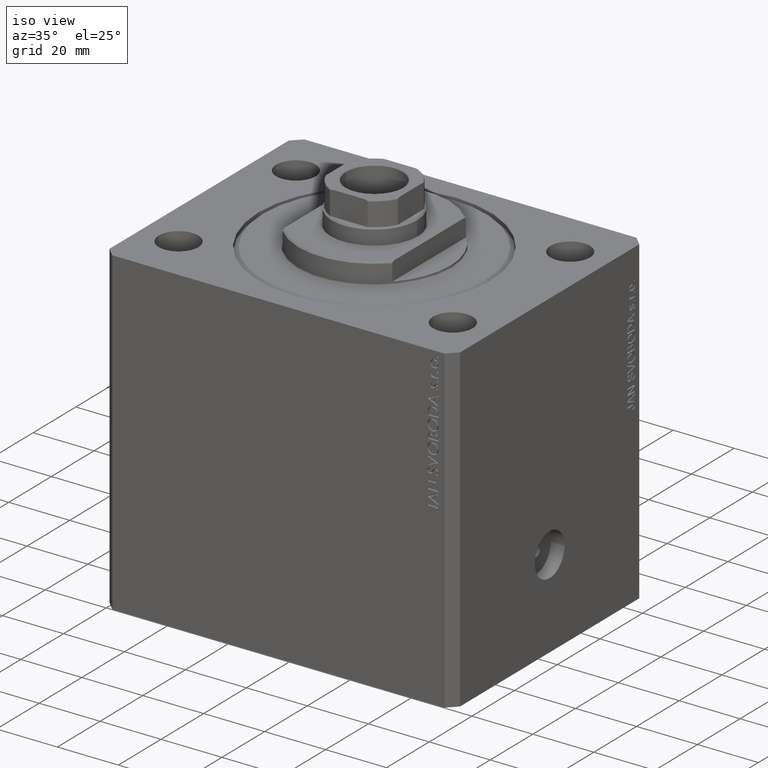
[diagram: clean part render]
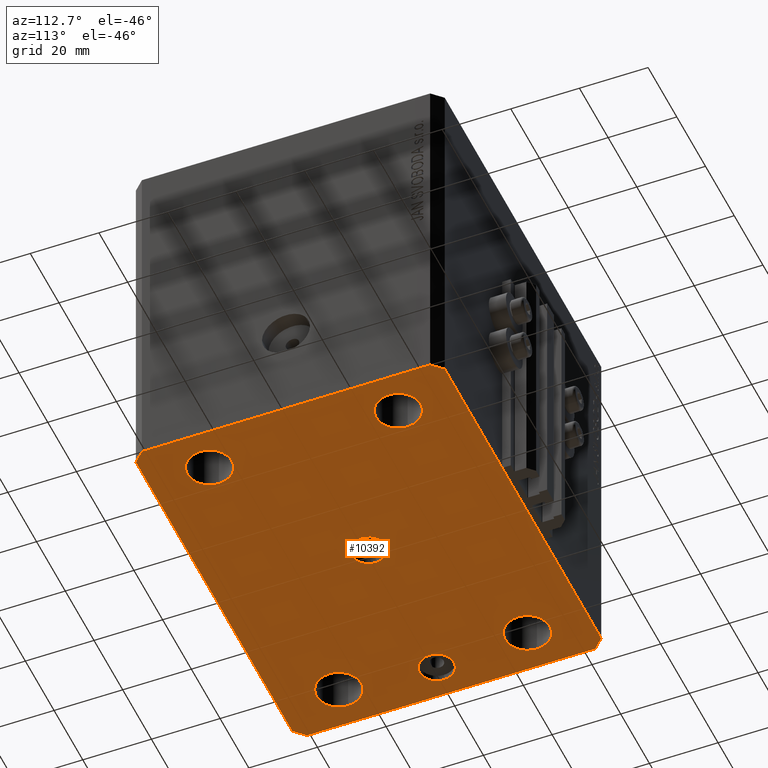
[diagram: tour spotlight — one face highlighted and labeled with its STEP entity id]
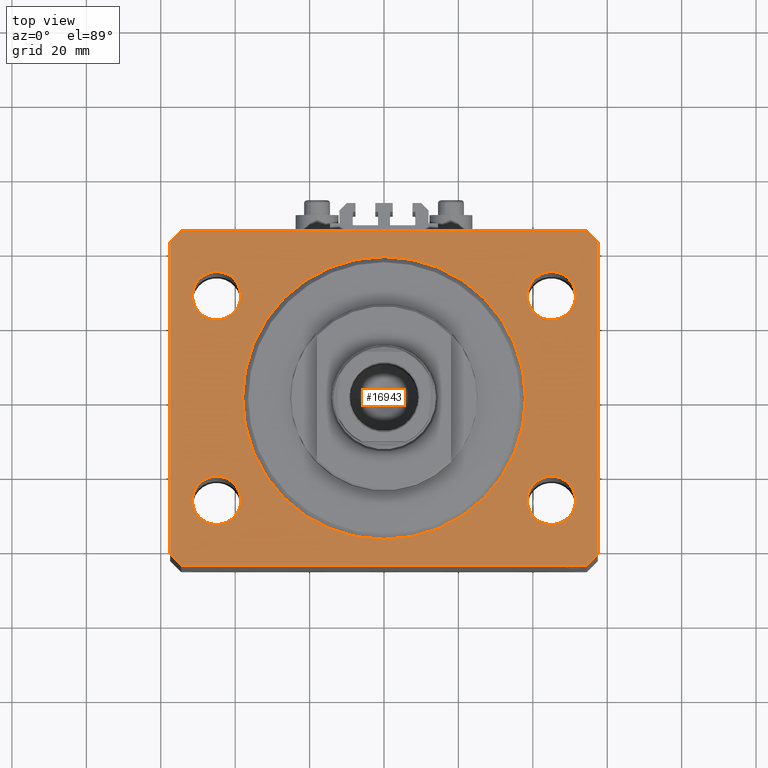
[diagram: tour spotlight — one face highlighted and labeled with its STEP entity id]
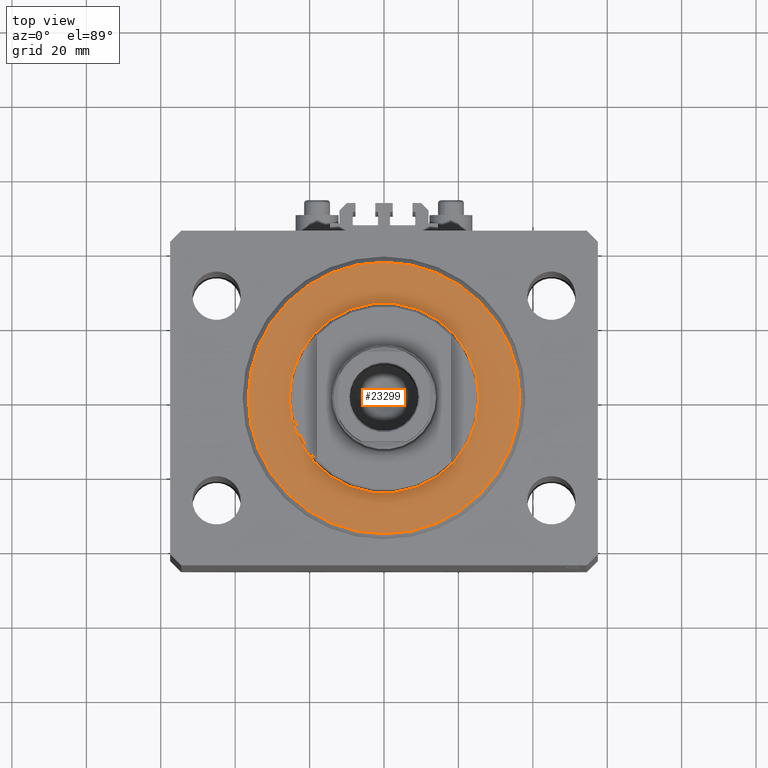
[diagram: tour spotlight — one face highlighted and labeled with its STEP entity id]
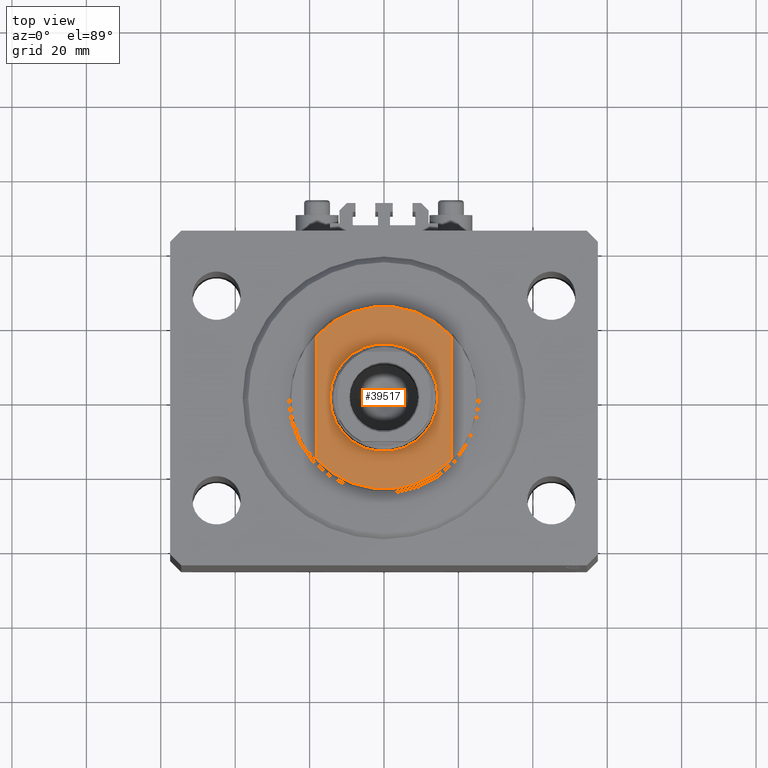
[diagram: tour spotlight — one face highlighted and labeled with its STEP entity id]
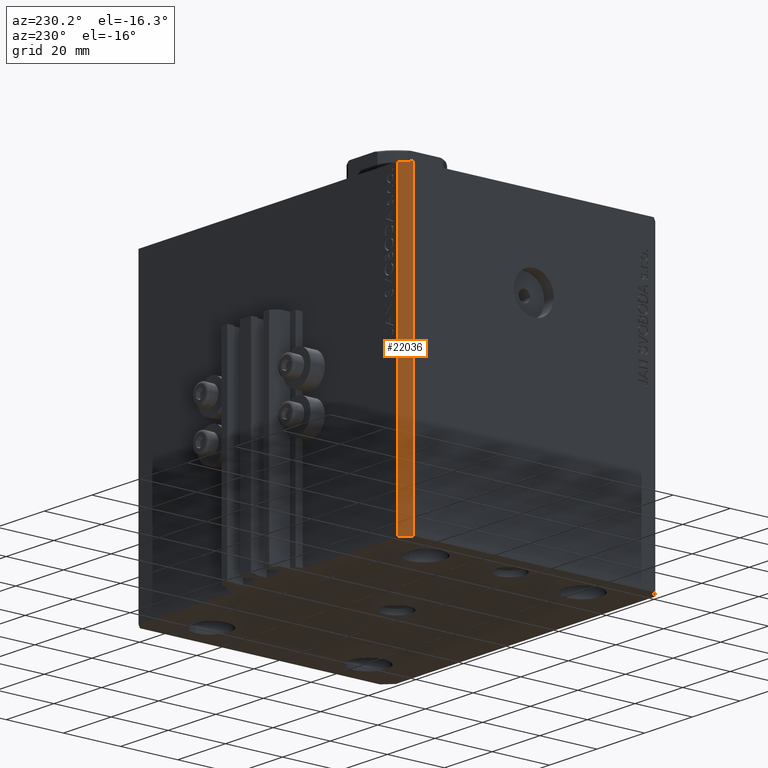
[diagram: tour spotlight — one face highlighted and labeled with its STEP entity id]
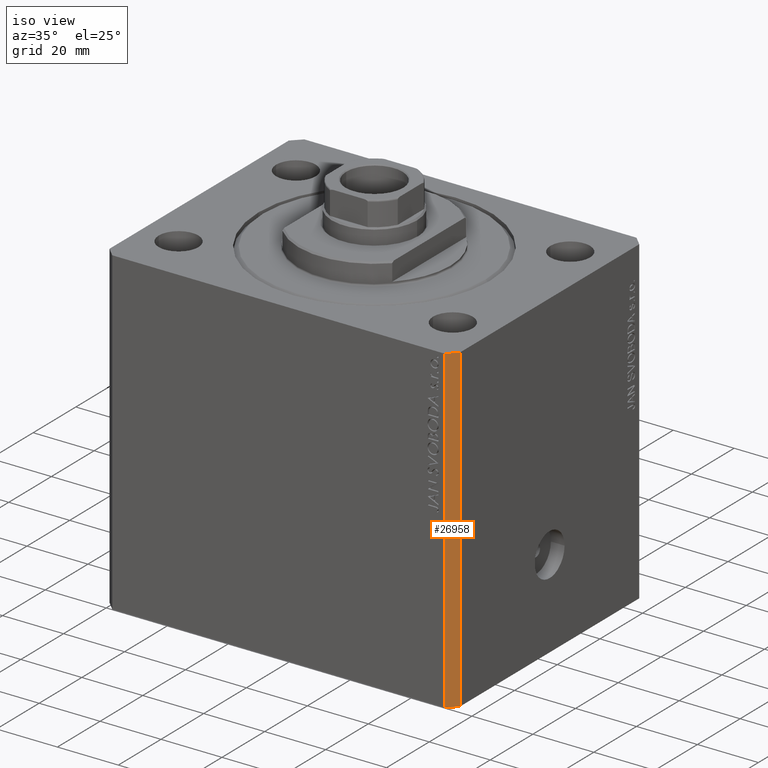
[diagram: tour spotlight — one face highlighted and labeled with its STEP entity id]
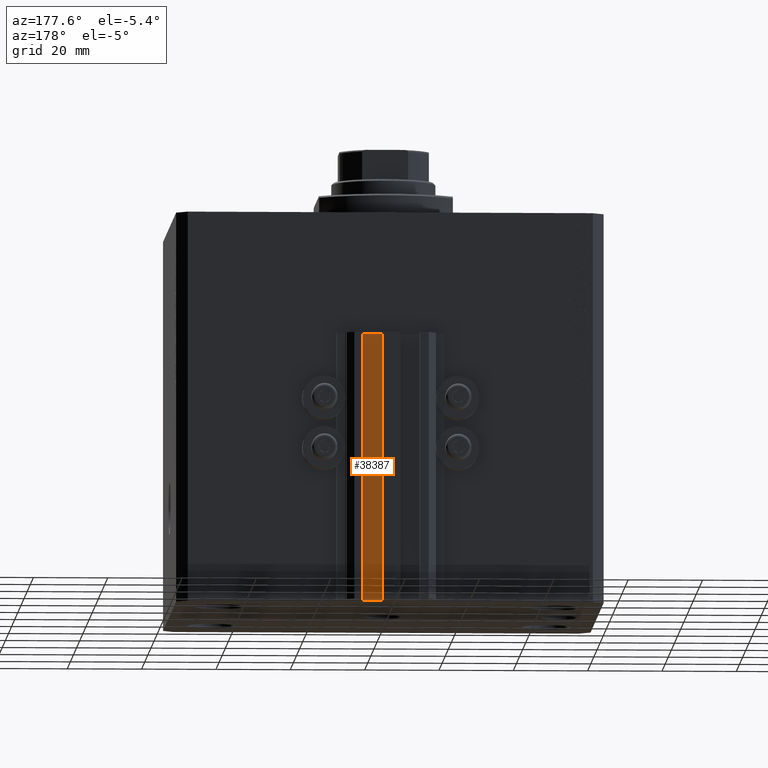
[diagram: tour spotlight — one face highlighted and labeled with its STEP entity id]
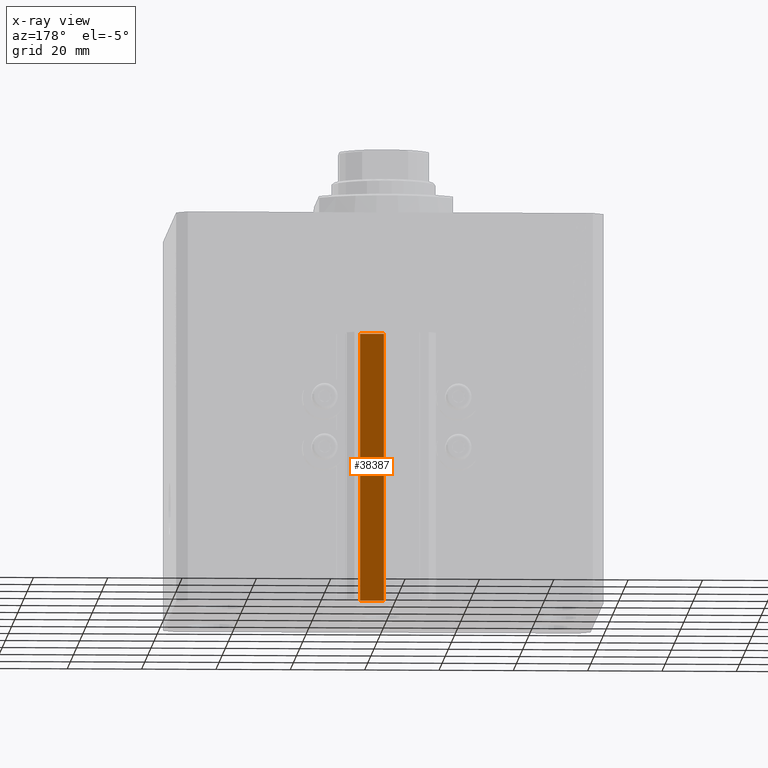
[diagram: x-ray of the same camera — body ghosted, this tour face saturated]
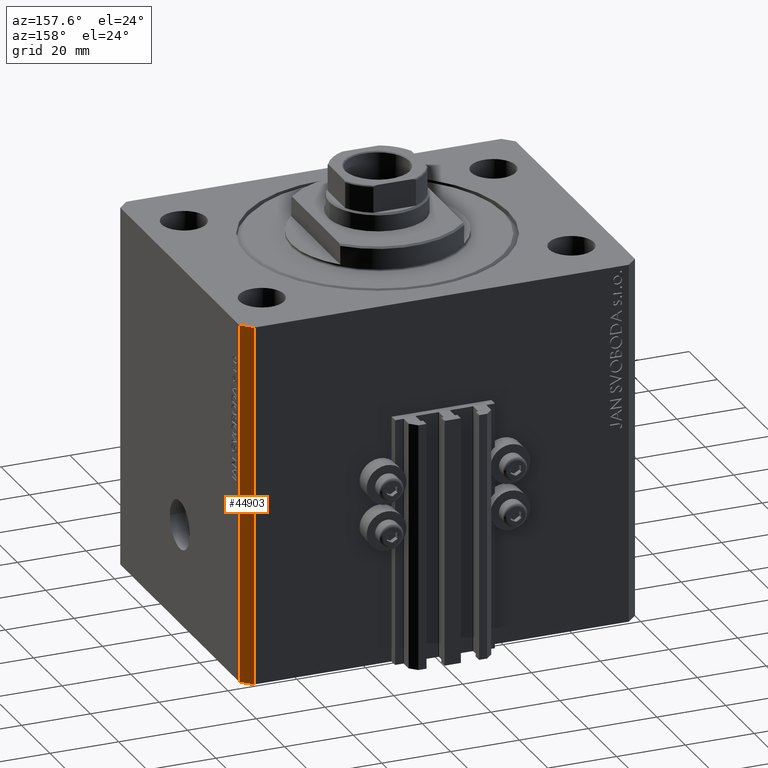
[diagram: tour spotlight — one face highlighted and labeled with its STEP entity id]
A machine part: a face-by-face anatomy tour. The part has 1038 B-rep faces; the first image is the clean iso view, then the 8 largest visible faces are spotlighted one at a time (largest first), each with its STEP entity span.

Face 1 — auxiliary view, entity #10392. In plain terms, the highlighted planar face has unit normal (0, 0, 1).
Definition (entity closure, byte-faithful):
#69 = LINE ( 'NONE', #21145, #22393 ) ;
#140 = CARTESIAN_POINT ( 'NONE',  ( -51.49999999999998579, -27.50000000000000355, -105.0000000000000000 ) ) ;
#258 = LINE ( 'NONE', #14835, #35272 ) ;
#326 = EDGE_CURVE ( 'NONE', #15201, #37220, #16287, .T. ) ;
#493 = DIRECTION ( 'NONE',  ( 0.7071067811865483499, 0.7071067811865466846, 0.000000000000000000 ) ) ;
#679 = CARTESIAN_POINT ( 'NONE',  ( 44.99999999999998579, -27.50000000000000355, -105.0000000000000000 ) ) ;
#759 = ORIENTED_EDGE ( 'NONE', *, *, #2575, .F. ) ;
#1664 = CARTESIAN_POINT ( 'NONE',  ( -54.49999999999999289, 45.00000000000000000, -105.0000000000000000 ) ) ;
#1755 = EDGE_CURVE ( 'NONE', #46718, #26068, #69, .T. ) ;
#2011 = AXIS2_PLACEMENT_3D ( 'NONE', #16313, #30922, #27315 ) ;
#2045 = CIRCLE ( 'NONE', #2011, 6.499999999999999112 ) ;
#2467 = AXIS2_PLACEMENT_3D ( 'NONE', #679, #22916, #44963 ) ;
#2575 = EDGE_CURVE ( 'NONE', #29087, #30211, #10949, .T. ) ;
#2623 = ORIENTED_EDGE ( 'NONE', *, *, #16200, .F. ) ;
#2705 = ORIENTED_EDGE ( 'NONE', *, *, #12320, .F. ) ;
#2850 = CARTESIAN_POINT ( 'NONE',  ( 54.50000000000000711, -44.99999999999998579, -105.0000000000000000 ) ) ;
#3313 = VECTOR ( 'NONE', #20920, 1000.000000000000000 ) ;
#3509 = DIRECTION ( 'NONE',  ( 0.000000000000000000, 0.000000000000000000, -1.000000000000000000 ) ) ;
#4062 = VERTEX_POINT ( 'NONE', #34671 ) ;
#4365 = VERTEX_POINT ( 'NONE', #9695 ) ;
#4397 = VERTEX_POINT ( 'NONE', #35559 ) ;
#4896 = EDGE_LOOP ( 'NONE', ( #15255, #2705 ) ) ;
#6023 = FACE_OUTER_BOUND ( 'NONE', #44539, .T. ) ;
#6194 = ORIENTED_EDGE ( 'NONE', *, *, #15883, .F. ) ;
#6317 = CARTESIAN_POINT ( 'NONE',  ( -57.49999999999998579, 42.00000000000000711, -105.0000000000000000 ) ) ;
#7408 = CARTESIAN_POINT ( 'NONE',  ( -47.50000000000000000, 0.000000000000000000, -105.0000000000000000 ) ) ;
#7666 = CIRCLE ( 'NONE', #13800, 6.499999999999999112 ) ;
#9592 = EDGE_CURVE ( 'NONE', #31810, #4062, #258, .T. ) ;
#9615 = FACE_BOUND ( 'NONE', #32064, .T. ) ;
#9630 = CARTESIAN_POINT ( 'NONE',  ( 44.99999999999998579, -27.50000000000000355, -105.0000000000000000 ) ) ;
#9643 = CARTESIAN_POINT ( 'NONE',  ( 0.000000000000000000, 0.000000000000000000, -105.0000000000000000 ) ) ;
#9695 = CARTESIAN_POINT ( 'NONE',  ( -57.50000000000000711, -42.00000000000000711, -105.0000000000000000 ) ) ;
#9883 = VERTEX_POINT ( 'NONE', #11187 ) ;
#9913 = EDGE_CURVE ( 'NONE', #43850, #46718, #15495, .T. ) ;
#10392 = ADVANCED_FACE ( 'NONE', ( #31649, #46263, #9615, #24438, #17746, #38832, #6023 ), #39070, .F. ) ;
#10811 = AXIS2_PLACEMENT_3D ( 'NONE', #9643, #31203, #45350 ) ;
#10949 = CIRCLE ( 'NONE', #19366, 6.499999999999999112 ) ;
#11187 = CARTESIAN_POINT ( 'NONE',  ( 51.49999999999998579, -27.50000000000000355, -105.0000000000000000 ) ) ;
#11669 = EDGE_CURVE ( 'NONE', #9883, #12645, #46834, .T. ) ;
#11958 = DIRECTION ( 'NONE',  ( -0.000000000000000000, -0.000000000000000000, -1.000000000000000000 ) ) ;
#12202 = CARTESIAN_POINT ( 'NONE',  ( -51.50000000000000000, 27.49999999999999645, -105.0000000000000000 ) ) ;
#12320 = EDGE_CURVE ( 'NONE', #12645, #9883, #12379, .T. ) ;
#12379 = CIRCLE ( 'NONE', #18506, 6.499999999999999112 ) ;
#12645 = VERTEX_POINT ( 'NONE', #45744 ) ;
#12703 = VERTEX_POINT ( 'NONE', #12202 ) ;
#12864 = DIRECTION ( 'NONE',  ( 0.000000000000000000, 0.000000000000000000, -1.000000000000000000 ) ) ;
#13404 = EDGE_LOOP ( 'NONE', ( #24295, #46302 ) ) ;
#13576 = DIRECTION ( 'NONE',  ( -0.000000000000000000, -0.000000000000000000, -1.000000000000000000 ) ) ;
#13800 = AXIS2_PLACEMENT_3D ( 'NONE', #24795, #29097, #46371 ) ;
#14080 = ORIENTED_EDGE ( 'NONE', *, *, #30751, .F. ) ;
#14551 = DIRECTION ( 'NONE',  ( -0.000000000000000000, -0.000000000000000000, -1.000000000000000000 ) ) ;
#14561 = EDGE_CURVE ( 'NONE', #15284, #42773, #19215, .T. ) ;
#14607 = EDGE_CURVE ( 'NONE', #18585, #12703, #36088, .T. ) ;
#14835 = CARTESIAN_POINT ( 'NONE',  ( 54.50000000000000711, -44.99999999999998579, -105.0000000000000000 ) ) ;
#15035 = CARTESIAN_POINT ( 'NONE',  ( -54.49999999999999289, 45.00000000000000000, -105.0000000000000000 ) ) ;
#15201 = VERTEX_POINT ( 'NONE', #21013 ) ;
#15255 = ORIENTED_EDGE ( 'NONE', *, *, #11669, .F. ) ;
#15284 = VERTEX_POINT ( 'NONE', #43759 ) ;
#15293 = EDGE_LOOP ( 'NONE', ( #36101, #24838 ) ) ;
#15484 = LINE ( 'NONE', #36562, #27704 ) ;
#15495 = LINE ( 'NONE', #41128, #42141 ) ;
#15883 = EDGE_CURVE ( 'NONE', #37220, #15201, #20834, .T. ) ;
#16071 = CARTESIAN_POINT ( 'NONE',  ( -54.50000000000000711, -45.00000000000000000, -105.0000000000000000 ) ) ;
#16119 = DIRECTION ( 'NONE',  ( -0.000000000000000000, -0.000000000000000000, -1.000000000000000000 ) ) ;
#16200 = EDGE_CURVE ( 'NONE', #4365, #4397, #15484, .T. ) ;
#16257 = AXIS2_PLACEMENT_3D ( 'NONE', #7408, #32344, #47182 ) ;
#16287 = CIRCLE ( 'NONE', #39988, 4.999999999999997335 ) ;
#16313 = CARTESIAN_POINT ( 'NONE',  ( -44.99999999999998579, -27.50000000000000355, -105.0000000000000000 ) ) ;
#16476 = CARTESIAN_POINT ( 'NONE',  ( 38.50000000000000000, 27.49999999999999289, -105.0000000000000000 ) ) ;
#16489 = ORIENTED_EDGE ( 'NONE', *, *, #9913, .F. ) ;
#16772 = EDGE_LOOP ( 'NONE', ( #6194, #45120 ) ) ;
#16852 = CARTESIAN_POINT ( 'NONE',  ( -38.50000000000000000, 27.49999999999999645, -105.0000000000000000 ) ) ;
#17696 = AXIS2_PLACEMENT_3D ( 'NONE', #46728, #21332, #20627 ) ;
#17746 = FACE_BOUND ( 'NONE', #25788, .T. ) ;
#18251 = VERTEX_POINT ( 'NONE', #34165 ) ;
#18361 = DIRECTION ( 'NONE',  ( 0.7071067811865491270, -0.7071067811865459074, 0.000000000000000000 ) ) ;
#18384 = DIRECTION ( 'NONE',  ( 1.000000000000000000, 0.000000000000000000, 0.000000000000000000 ) ) ;
#18506 = AXIS2_PLACEMENT_3D ( 'NONE', #9630, #41736, #38618 ) ;
#18585 = VERTEX_POINT ( 'NONE', #16852 ) ;
#18617 = ORIENTED_EDGE ( 'NONE', *, *, #24528, .F. ) ;
#18626 = EDGE_CURVE ( 'NONE', #37508, #4365, #30766, .T. ) ;
#19215 = CIRCLE ( 'NONE', #10811, 5.000000000000000000 ) ;
#19366 = AXIS2_PLACEMENT_3D ( 'NONE', #29945, #11958, #36638 ) ;
#19524 = CIRCLE ( 'NONE', #35610, 5.000000000000000000 ) ;
#19955 = CARTESIAN_POINT ( 'NONE',  ( -45.00000000000000000, 27.49999999999999645, -105.0000000000000000 ) ) ;
#20561 = LINE ( 'NONE', #31342, #45519 ) ;
#20627 = DIRECTION ( 'NONE',  ( 1.000000000000000000, 0.000000000000000000, -0.000000000000000000 ) ) ;
#20834 = CIRCLE ( 'NONE', #16257, 4.999999999999997335 ) ;
#20920 = DIRECTION ( 'NONE',  ( -2.478176394252581141E-16, -1.000000000000000000, 0.000000000000000000 ) ) ;
#20947 = VERTEX_POINT ( 'NONE', #16476 ) ;
#21013 = CARTESIAN_POINT ( 'NONE',  ( -42.50000000000000000, 6.123233995736762338E-16, -105.0000000000000000 ) ) ;
#21145 = CARTESIAN_POINT ( 'NONE',  ( 54.50000000000059686, 45.00000000000002842, -105.0000000000000000 ) ) ;
#21332 = DIRECTION ( 'NONE',  ( 0.000000000000000000, 0.000000000000000000, 1.000000000000000000 ) ) ;
#22070 = DIRECTION ( 'NONE',  ( -1.000000000000000000, -2.546383084002638829E-16, 0.000000000000000000 ) ) ;
#22393 = VECTOR ( 'NONE', #22070, 1000.000000000000000 ) ;
#22453 = DIRECTION ( 'NONE',  ( -0.7071067811865483499, -0.7071067811865466846, 0.000000000000000000 ) ) ;
#22916 = DIRECTION ( 'NONE',  ( -0.000000000000000000, -0.000000000000000000, -1.000000000000000000 ) ) ;
#23088 = CARTESIAN_POINT ( 'NONE',  ( -5.000000000000000000, 0.000000000000000000, -105.0000000000000000 ) ) ;
#23637 = CARTESIAN_POINT ( 'NONE',  ( 45.00000000000000000, 27.49999999999999289, -105.0000000000000000 ) ) ;
#24295 = ORIENTED_EDGE ( 'NONE', *, *, #24766, .F. ) ;
#24438 = FACE_BOUND ( 'NONE', #4896, .T. ) ;
#24528 = EDGE_CURVE ( 'NONE', #26068, #37508, #47377, .T. ) ;
#24632 = CIRCLE ( 'NONE', #28484, 6.499999999999999112 ) ;
#24766 = EDGE_CURVE ( 'NONE', #42773, #15284, #19524, .T. ) ;
#24795 = CARTESIAN_POINT ( 'NONE',  ( -45.00000000000000000, 27.49999999999999645, -105.0000000000000000 ) ) ;
#24838 = ORIENTED_EDGE ( 'NONE', *, *, #41880, .F. ) ;
#24990 = ORIENTED_EDGE ( 'NONE', *, *, #34250, .F. ) ;
#25788 = EDGE_LOOP ( 'NONE', ( #24990, #37772 ) ) ;
#25978 = CARTESIAN_POINT ( 'NONE',  ( 0.000000000000000000, 0.000000000000000000, -105.0000000000000000 ) ) ;
#26068 = VERTEX_POINT ( 'NONE', #1664 ) ;
#27156 = EDGE_CURVE ( 'NONE', #4062, #43850, #20561, .T. ) ;
#27315 = DIRECTION ( 'NONE',  ( 1.000000000000000000, 0.000000000000000000, 0.000000000000000000 ) ) ;
#27704 = VECTOR ( 'NONE', #18361, 1000.000000000000114 ) ;
#28484 = AXIS2_PLACEMENT_3D ( 'NONE', #40197, #14551, #18384 ) ;
#29051 = CARTESIAN_POINT ( 'NONE',  ( -38.49999999999998579, -27.50000000000000355, -105.0000000000000000 ) ) ;
#29087 = VERTEX_POINT ( 'NONE', #140 ) ;
#29097 = DIRECTION ( 'NONE',  ( -0.000000000000000000, -0.000000000000000000, -1.000000000000000000 ) ) ;
#29945 = CARTESIAN_POINT ( 'NONE',  ( -44.99999999999998579, -27.50000000000000355, -105.0000000000000000 ) ) ;
#30186 = ORIENTED_EDGE ( 'NONE', *, *, #1755, .F. ) ;
#30211 = VERTEX_POINT ( 'NONE', #29051 ) ;
#30629 = ORIENTED_EDGE ( 'NONE', *, *, #45435, .F. ) ;
#30656 = CARTESIAN_POINT ( 'NONE',  ( 54.50000000000059686, 45.00000000000002842, -105.0000000000000000 ) ) ;
#30751 = EDGE_CURVE ( 'NONE', #30211, #29087, #2045, .T. ) ;
#30766 = LINE ( 'NONE', #6317, #3313 ) ;
#30913 = ORIENTED_EDGE ( 'NONE', *, *, #27156, .F. ) ;
#30922 = DIRECTION ( 'NONE',  ( -0.000000000000000000, -0.000000000000000000, -1.000000000000000000 ) ) ;
#30968 = DIRECTION ( 'NONE',  ( 1.000000000000000000, 0.000000000000000000, 0.000000000000000000 ) ) ;
#31203 = DIRECTION ( 'NONE',  ( 0.000000000000000000, 0.000000000000000000, -1.000000000000000000 ) ) ;
#31336 = ORIENTED_EDGE ( 'NONE', *, *, #9592, .F. ) ;
#31342 = CARTESIAN_POINT ( 'NONE',  ( 57.50000000000000711, -41.99999999999998579, -105.0000000000000000 ) ) ;
#31649 = FACE_BOUND ( 'NONE', #13404, .T. ) ;
#31810 = VERTEX_POINT ( 'NONE', #2850 ) ;
#31898 = AXIS2_PLACEMENT_3D ( 'NONE', #23637, #13576, #34682 ) ;
#32064 = EDGE_LOOP ( 'NONE', ( #14080, #759 ) ) ;
#32344 = DIRECTION ( 'NONE',  ( 0.000000000000000000, 0.000000000000000000, -1.000000000000000000 ) ) ;
#32568 = CARTESIAN_POINT ( 'NONE',  ( -57.49999999999998579, 42.00000000000000711, -105.0000000000000000 ) ) ;
#34165 = CARTESIAN_POINT ( 'NONE',  ( 51.50000000000000000, 27.49999999999999289, -105.0000000000000000 ) ) ;
#34250 = EDGE_CURVE ( 'NONE', #18251, #20947, #36464, .T. ) ;
#34565 = VECTOR ( 'NONE', #41703, 1000.000000000000000 ) ;
#34671 = CARTESIAN_POINT ( 'NONE',  ( 57.50000000000000711, -41.99999999999998579, -105.0000000000000000 ) ) ;
#34682 = DIRECTION ( 'NONE',  ( 1.000000000000000000, 0.000000000000000000, 0.000000000000000000 ) ) ;
#35175 = DIRECTION ( 'NONE',  ( 6.443258625056715108E-15, 1.000000000000000000, 0.000000000000000000 ) ) ;
#35272 = VECTOR ( 'NONE', #493, 1000.000000000000000 ) ;
#35325 = ORIENTED_EDGE ( 'NONE', *, *, #18626, .F. ) ;
#35559 = CARTESIAN_POINT ( 'NONE',  ( -54.50000000000000711, -45.00000000000000000, -105.0000000000000000 ) ) ;
#35610 = AXIS2_PLACEMENT_3D ( 'NONE', #25978, #3509, #44201 ) ;
#35628 = CARTESIAN_POINT ( 'NONE',  ( -47.50000000000000000, 0.000000000000000000, -105.0000000000000000 ) ) ;
#36088 = CIRCLE ( 'NONE', #39920, 6.499999999999999112 ) ;
#36101 = ORIENTED_EDGE ( 'NONE', *, *, #14607, .F. ) ;
#36464 = CIRCLE ( 'NONE', #31898, 6.499999999999999112 ) ;
#36562 = CARTESIAN_POINT ( 'NONE',  ( -57.50000000000000711, -42.00000000000000711, -105.0000000000000000 ) ) ;
#36638 = DIRECTION ( 'NONE',  ( 1.000000000000000000, 0.000000000000000000, 0.000000000000000000 ) ) ;
#37220 = VERTEX_POINT ( 'NONE', #46828 ) ;
#37508 = VERTEX_POINT ( 'NONE', #32568 ) ;
#37772 = ORIENTED_EDGE ( 'NONE', *, *, #46935, .F. ) ;
#38105 = LINE ( 'NONE', #16071, #34565 ) ;
#38618 = DIRECTION ( 'NONE',  ( 1.000000000000000000, 0.000000000000000000, 0.000000000000000000 ) ) ;
#38832 = FACE_BOUND ( 'NONE', #15293, .T. ) ;
#39070 = PLANE ( 'NONE',  #17696 ) ;
#39920 = AXIS2_PLACEMENT_3D ( 'NONE', #19955, #16119, #30968 ) ;
#39988 = AXIS2_PLACEMENT_3D ( 'NONE', #35628, #12864, #46402 ) ;
#40197 = CARTESIAN_POINT ( 'NONE',  ( 45.00000000000000000, 27.49999999999999289, -105.0000000000000000 ) ) ;
#40378 = CARTESIAN_POINT ( 'NONE',  ( 57.50000000000055422, 41.99999999999997868, -105.0000000000000000 ) ) ;
#40972 = VECTOR ( 'NONE', #22453, 1000.000000000000000 ) ;
#41128 = CARTESIAN_POINT ( 'NONE',  ( 57.50000000000055422, 41.99999999999997868, -105.0000000000000000 ) ) ;
#41703 = DIRECTION ( 'NONE',  ( 1.000000000000000000, 1.273191542001326317E-16, 0.000000000000000000 ) ) ;
#41736 = DIRECTION ( 'NONE',  ( -0.000000000000000000, -0.000000000000000000, -1.000000000000000000 ) ) ;
#41880 = EDGE_CURVE ( 'NONE', #12703, #18585, #7666, .T. ) ;
#42141 = VECTOR ( 'NONE', #44950, 1000.000000000000000 ) ;
#42773 = VERTEX_POINT ( 'NONE', #23088 ) ;
#43759 = CARTESIAN_POINT ( 'NONE',  ( 5.000000000000000000, 6.123233995736765296E-16, -105.0000000000000000 ) ) ;
#43850 = VERTEX_POINT ( 'NONE', #40378 ) ;
#44201 = DIRECTION ( 'NONE',  ( -1.000000000000000000, 0.000000000000000000, 0.000000000000000000 ) ) ;
#44539 = EDGE_LOOP ( 'NONE', ( #30186, #16489, #30913, #31336, #30629, #2623, #35325, #18617 ) ) ;
#44950 = DIRECTION ( 'NONE',  ( -0.7071067811865369146, 0.7071067811865581199, 0.000000000000000000 ) ) ;
#44963 = DIRECTION ( 'NONE',  ( 1.000000000000000000, 0.000000000000000000, 0.000000000000000000 ) ) ;
#45120 = ORIENTED_EDGE ( 'NONE', *, *, #326, .F. ) ;
#45350 = DIRECTION ( 'NONE',  ( -1.000000000000000000, 0.000000000000000000, 0.000000000000000000 ) ) ;
#45435 = EDGE_CURVE ( 'NONE', #4397, #31810, #38105, .T. ) ;
#45519 = VECTOR ( 'NONE', #35175, 1000.000000000000000 ) ;
#45744 = CARTESIAN_POINT ( 'NONE',  ( 38.49999999999998579, -27.50000000000000355, -105.0000000000000000 ) ) ;
#46263 = FACE_BOUND ( 'NONE', #16772, .T. ) ;
#46302 = ORIENTED_EDGE ( 'NONE', *, *, #14561, .F. ) ;
#46371 = DIRECTION ( 'NONE',  ( 1.000000000000000000, 0.000000000000000000, 0.000000000000000000 ) ) ;
#46402 = DIRECTION ( 'NONE',  ( -1.000000000000000000, 0.000000000000000000, 0.000000000000000000 ) ) ;
#46718 = VERTEX_POINT ( 'NONE', #30656 ) ;
#46728 = CARTESIAN_POINT ( 'NONE',  ( 0.000000000000000000, 0.000000000000000000, -105.0000000000000000 ) ) ;
#46828 = CARTESIAN_POINT ( 'NONE',  ( -52.50000000000000000, 0.000000000000000000, -105.0000000000000000 ) ) ;
#46834 = CIRCLE ( 'NONE', #2467, 6.499999999999999112 ) ;
#46935 = EDGE_CURVE ( 'NONE', #20947, #18251, #24632, .T. ) ;
#47182 = DIRECTION ( 'NONE',  ( -1.000000000000000000, 0.000000000000000000, 0.000000000000000000 ) ) ;
#47377 = LINE ( 'NONE', #15035, #40972 ) ;

Face 2 — top view, entity #16943. In plain terms, the highlighted planar face has unit normal (0, 0, 1).
Definition (entity closure, byte-faithful):
#101 = VERTEX_POINT ( 'NONE', #40688 ) ;
#133 = DIRECTION ( 'NONE',  ( 1.000000000000000000, 0.000000000000000000, 0.000000000000000000 ) ) ;
#383 = CARTESIAN_POINT ( 'NONE',  ( 38.00000000000000000, 0.000000000000000000, 0.000000000000000000 ) ) ;
#556 = DIRECTION ( 'NONE',  ( -0.7071067811865369146, 0.7071067811865581199, 0.000000000000000000 ) ) ;
#681 = AXIS2_PLACEMENT_3D ( 'NONE', #38016, #24108, #45683 ) ;
#742 = CARTESIAN_POINT ( 'NONE',  ( -51.49999999999998579, -27.50000000000000355, 0.000000000000000000 ) ) ;
#957 = DIRECTION ( 'NONE',  ( -0.7071067811865483499, -0.7071067811865466846, 0.000000000000000000 ) ) ;
#1345 = EDGE_CURVE ( 'NONE', #101, #11110, #13176, .T. ) ;
#2023 = DIRECTION ( 'NONE',  ( 0.7071067811865491270, -0.7071067811865459074, 0.000000000000000000 ) ) ;
#3036 = DIRECTION ( 'NONE',  ( 0.000000000000000000, 0.000000000000000000, 1.000000000000000000 ) ) ;
#3124 = PLANE ( 'NONE',  #11621 ) ;
#3530 = VECTOR ( 'NONE', #556, 1000.000000000000000 ) ;
#3561 = LINE ( 'NONE', #22451, #47304 ) ;
#3586 = FACE_BOUND ( 'NONE', #44625, .T. ) ;
#4081 = EDGE_CURVE ( 'NONE', #8337, #24117, #18266, .T. ) ;
#4717 = VECTOR ( 'NONE', #2023, 1000.000000000000114 ) ;
#4986 = EDGE_CURVE ( 'NONE', #24117, #8337, #6830, .T. ) ;
#5361 = LINE ( 'NONE', #17315, #35671 ) ;
#5797 = CIRCLE ( 'NONE', #11884, 6.499999999999999112 ) ;
#5895 = CARTESIAN_POINT ( 'NONE',  ( -54.49999999999999289, 45.00000000000000000, 0.000000000000000000 ) ) ;
#5994 = ORIENTED_EDGE ( 'NONE', *, *, #44404, .F. ) ;
#6140 = CARTESIAN_POINT ( 'NONE',  ( 0.000000000000000000, 0.000000000000000000, 0.000000000000000000 ) ) ;
#6287 = CARTESIAN_POINT ( 'NONE',  ( -57.49999999999998579, 42.00000000000000711, 0.000000000000000000 ) ) ;
#6830 = CIRCLE ( 'NONE', #23622, 6.499999999999999112 ) ;
#6954 = LINE ( 'NONE', #26084, #24549 ) ;
#7158 = ORIENTED_EDGE ( 'NONE', *, *, #45959, .T. ) ;
#7395 = CARTESIAN_POINT ( 'NONE',  ( -45.00000000000000000, 27.49999999999999645, 0.000000000000000000 ) ) ;
#7498 = AXIS2_PLACEMENT_3D ( 'NONE', #23683, #19640, #19874 ) ;
#7631 = DIRECTION ( 'NONE',  ( 0.000000000000000000, 0.000000000000000000, 1.000000000000000000 ) ) ;
#7738 = CIRCLE ( 'NONE', #36806, 6.499999999999999112 ) ;
#8292 = CIRCLE ( 'NONE', #7498, 6.499999999999999112 ) ;
#8337 = VERTEX_POINT ( 'NONE', #17320 ) ;
#8466 = ORIENTED_EDGE ( 'NONE', *, *, #38246, .T. ) ;
#9048 = EDGE_CURVE ( 'NONE', #40389, #43903, #37549, .T. ) ;
#9472 = EDGE_CURVE ( 'NONE', #26060, #16795, #6954, .T. ) ;
#10562 = VERTEX_POINT ( 'NONE', #42134 ) ;
#10880 = AXIS2_PLACEMENT_3D ( 'NONE', #26542, #27020, #34216 ) ;
#10916 = CARTESIAN_POINT ( 'NONE',  ( -57.49999999999998579, 42.00000000000000711, 0.000000000000000000 ) ) ;
#11110 = VERTEX_POINT ( 'NONE', #383 ) ;
#11224 = FACE_BOUND ( 'NONE', #34747, .T. ) ;
#11349 = DIRECTION ( 'NONE',  ( 0.000000000000000000, 0.000000000000000000, 1.000000000000000000 ) ) ;
#11432 = DIRECTION ( 'NONE',  ( 0.7071067811865483499, 0.7071067811865466846, 0.000000000000000000 ) ) ;
#11621 = AXIS2_PLACEMENT_3D ( 'NONE', #18415, #7631, #22242 ) ;
#11884 = AXIS2_PLACEMENT_3D ( 'NONE', #44956, #37769, #19566 ) ;
#11899 = ORIENTED_EDGE ( 'NONE', *, *, #40052, .T. ) ;
#12156 = ORIENTED_EDGE ( 'NONE', *, *, #38010, .F. ) ;
#13176 = CIRCLE ( 'NONE', #32335, 38.00000000000000000 ) ;
#14298 = CARTESIAN_POINT ( 'NONE',  ( -45.00000000000000000, 27.49999999999999645, 0.000000000000000000 ) ) ;
#14816 = FACE_BOUND ( 'NONE', #27899, .T. ) ;
#15014 = ORIENTED_EDGE ( 'NONE', *, *, #29741, .F. ) ;
#16795 = VERTEX_POINT ( 'NONE', #23713 ) ;
#16908 = ORIENTED_EDGE ( 'NONE', *, *, #21999, .F. ) ;
#16943 = ADVANCED_FACE ( 'NONE', ( #11224, #3586, #18186, #25592, #14816, #25825 ), #3124, .T. ) ;
#17005 = EDGE_CURVE ( 'NONE', #18049, #29840, #23867, .T. ) ;
#17315 = CARTESIAN_POINT ( 'NONE',  ( 57.50000000000000711, -41.99999999999998579, 0.000000000000000000 ) ) ;
#17320 = CARTESIAN_POINT ( 'NONE',  ( -38.49999999999998579, -27.50000000000000355, 0.000000000000000000 ) ) ;
#18022 = CARTESIAN_POINT ( 'NONE',  ( 57.50000000000055422, 41.99999999999997868, 0.000000000000000000 ) ) ;
#18023 = CIRCLE ( 'NONE', #36376, 38.00000000000000000 ) ;
#18049 = VERTEX_POINT ( 'NONE', #34708 ) ;
#18186 = FACE_BOUND ( 'NONE', #19886, .T. ) ;
#18266 = CIRCLE ( 'NONE', #681, 6.499999999999999112 ) ;
#18415 = CARTESIAN_POINT ( 'NONE',  ( 0.000000000000000000, 0.000000000000000000, 0.000000000000000000 ) ) ;
#19566 = DIRECTION ( 'NONE',  ( 1.000000000000000000, 0.000000000000000000, 0.000000000000000000 ) ) ;
#19640 = DIRECTION ( 'NONE',  ( 0.000000000000000000, 0.000000000000000000, 1.000000000000000000 ) ) ;
#19874 = DIRECTION ( 'NONE',  ( 1.000000000000000000, 0.000000000000000000, 0.000000000000000000 ) ) ;
#19886 = EDGE_LOOP ( 'NONE', ( #20509, #15014 ) ) ;
#20166 = CARTESIAN_POINT ( 'NONE',  ( 54.50000000000059686, 45.00000000000002842, 0.000000000000000000 ) ) ;
#20174 = LINE ( 'NONE', #23985, #22979 ) ;
#20509 = ORIENTED_EDGE ( 'NONE', *, *, #9048, .F. ) ;
#20890 = LINE ( 'NONE', #6287, #32839 ) ;
#21761 = ORIENTED_EDGE ( 'NONE', *, *, #4081, .F. ) ;
#21999 = EDGE_CURVE ( 'NONE', #10562, #25199, #31706, .T. ) ;
#22242 = DIRECTION ( 'NONE',  ( 1.000000000000000000, 0.000000000000000000, -0.000000000000000000 ) ) ;
#22451 = CARTESIAN_POINT ( 'NONE',  ( 54.50000000000000711, -44.99999999999998579, 0.000000000000000000 ) ) ;
#22639 = CARTESIAN_POINT ( 'NONE',  ( 38.49999999999998579, -27.50000000000000355, 0.000000000000000000 ) ) ;
#22742 = ORIENTED_EDGE ( 'NONE', *, *, #30503, .T. ) ;
#22979 = VECTOR ( 'NONE', #957, 1000.000000000000000 ) ;
#23225 = EDGE_LOOP ( 'NONE', ( #31687, #28909, #11899, #7158, #34712, #8466, #22742, #23425 ) ) ;
#23425 = ORIENTED_EDGE ( 'NONE', *, *, #30216, .T. ) ;
#23461 = CARTESIAN_POINT ( 'NONE',  ( -44.99999999999998579, -27.50000000000000355, 0.000000000000000000 ) ) ;
#23622 = AXIS2_PLACEMENT_3D ( 'NONE', #23461, #34491, #33777 ) ;
#23683 = CARTESIAN_POINT ( 'NONE',  ( 45.00000000000000000, 27.49999999999999289, 0.000000000000000000 ) ) ;
#23713 = CARTESIAN_POINT ( 'NONE',  ( 54.50000000000000711, -44.99999999999998579, 0.000000000000000000 ) ) ;
#23867 = CIRCLE ( 'NONE', #10880, 6.499999999999999112 ) ;
#23985 = CARTESIAN_POINT ( 'NONE',  ( -54.49999999999999289, 45.00000000000000000, 0.000000000000000000 ) ) ;
#24102 = ORIENTED_EDGE ( 'NONE', *, *, #1345, .F. ) ;
#24108 = DIRECTION ( 'NONE',  ( 0.000000000000000000, 0.000000000000000000, 1.000000000000000000 ) ) ;
#24117 = VERTEX_POINT ( 'NONE', #742 ) ;
#24549 = VECTOR ( 'NONE', #36881, 1000.000000000000000 ) ;
#24662 = EDGE_LOOP ( 'NONE', ( #42111, #12156 ) ) ;
#24739 = VERTEX_POINT ( 'NONE', #10916 ) ;
#25199 = VERTEX_POINT ( 'NONE', #41810 ) ;
#25490 = CARTESIAN_POINT ( 'NONE',  ( 44.99999999999998579, -27.50000000000000355, 0.000000000000000000 ) ) ;
#25505 = CARTESIAN_POINT ( 'NONE',  ( 38.50000000000000000, 27.49999999999999289, 0.000000000000000000 ) ) ;
#25592 = FACE_BOUND ( 'NONE', #24662, .T. ) ;
#25825 = FACE_OUTER_BOUND ( 'NONE', #23225, .T. ) ;
#26060 = VERTEX_POINT ( 'NONE', #45237 ) ;
#26084 = CARTESIAN_POINT ( 'NONE',  ( -54.50000000000000711, -45.00000000000000000, 0.000000000000000000 ) ) ;
#26249 = DIRECTION ( 'NONE',  ( 1.000000000000000000, 0.000000000000000000, 0.000000000000000000 ) ) ;
#26359 = AXIS2_PLACEMENT_3D ( 'NONE', #14298, #36333, #36108 ) ;
#26542 = CARTESIAN_POINT ( 'NONE',  ( 45.00000000000000000, 27.49999999999999289, 0.000000000000000000 ) ) ;
#27020 = DIRECTION ( 'NONE',  ( 0.000000000000000000, 0.000000000000000000, 1.000000000000000000 ) ) ;
#27374 = CARTESIAN_POINT ( 'NONE',  ( -57.50000000000000711, -42.00000000000000711, 0.000000000000000000 ) ) ;
#27899 = EDGE_LOOP ( 'NONE', ( #16908, #5994 ) ) ;
#28731 = DIRECTION ( 'NONE',  ( -1.000000000000000000, -2.546383084002638829E-16, 0.000000000000000000 ) ) ;
#28909 = ORIENTED_EDGE ( 'NONE', *, *, #43224, .T. ) ;
#29741 = EDGE_CURVE ( 'NONE', #43903, #40389, #5797, .T. ) ;
#29748 = EDGE_CURVE ( 'NONE', #11110, #101, #18023, .T. ) ;
#29840 = VERTEX_POINT ( 'NONE', #25505 ) ;
#30216 = EDGE_CURVE ( 'NONE', #31246, #32197, #32874, .T. ) ;
#30503 = EDGE_CURVE ( 'NONE', #45929, #31246, #5361, .T. ) ;
#30758 = LINE ( 'NONE', #27374, #4717 ) ;
#31009 = VERTEX_POINT ( 'NONE', #5895 ) ;
#31246 = VERTEX_POINT ( 'NONE', #18022 ) ;
#31326 = ORIENTED_EDGE ( 'NONE', *, *, #29748, .F. ) ;
#31450 = DIRECTION ( 'NONE',  ( 6.443258625056715108E-15, 1.000000000000000000, 0.000000000000000000 ) ) ;
#31482 = CARTESIAN_POINT ( 'NONE',  ( 54.50000000000059686, 45.00000000000002842, 0.000000000000000000 ) ) ;
#31687 = ORIENTED_EDGE ( 'NONE', *, *, #36649, .T. ) ;
#31706 = CIRCLE ( 'NONE', #26359, 6.499999999999999112 ) ;
#32197 = VERTEX_POINT ( 'NONE', #20166 ) ;
#32335 = AXIS2_PLACEMENT_3D ( 'NONE', #41583, #34156, #26249 ) ;
#32559 = LINE ( 'NONE', #31482, #36564 ) ;
#32839 = VECTOR ( 'NONE', #38396, 1000.000000000000000 ) ;
#32874 = LINE ( 'NONE', #44130, #3530 ) ;
#33777 = DIRECTION ( 'NONE',  ( 1.000000000000000000, 0.000000000000000000, 0.000000000000000000 ) ) ;
#33862 = CARTESIAN_POINT ( 'NONE',  ( 57.50000000000000711, -41.99999999999998579, 0.000000000000000000 ) ) ;
#34156 = DIRECTION ( 'NONE',  ( 0.000000000000000000, 0.000000000000000000, 1.000000000000000000 ) ) ;
#34216 = DIRECTION ( 'NONE',  ( 1.000000000000000000, 0.000000000000000000, 0.000000000000000000 ) ) ;
#34491 = DIRECTION ( 'NONE',  ( 0.000000000000000000, 0.000000000000000000, 1.000000000000000000 ) ) ;
#34708 = CARTESIAN_POINT ( 'NONE',  ( 51.50000000000000000, 27.49999999999999289, 0.000000000000000000 ) ) ;
#34712 = ORIENTED_EDGE ( 'NONE', *, *, #9472, .T. ) ;
#34747 = EDGE_LOOP ( 'NONE', ( #31326, #24102 ) ) ;
#35671 = VECTOR ( 'NONE', #31450, 1000.000000000000000 ) ;
#36108 = DIRECTION ( 'NONE',  ( 1.000000000000000000, 0.000000000000000000, 0.000000000000000000 ) ) ;
#36333 = DIRECTION ( 'NONE',  ( 0.000000000000000000, 0.000000000000000000, 1.000000000000000000 ) ) ;
#36376 = AXIS2_PLACEMENT_3D ( 'NONE', #6140, #3036, #46148 ) ;
#36564 = VECTOR ( 'NONE', #28731, 1000.000000000000000 ) ;
#36649 = EDGE_CURVE ( 'NONE', #32197, #31009, #32559, .T. ) ;
#36806 = AXIS2_PLACEMENT_3D ( 'NONE', #7395, #40449, #40219 ) ;
#36881 = DIRECTION ( 'NONE',  ( 1.000000000000000000, 1.273191542001326317E-16, 0.000000000000000000 ) ) ;
#37549 = CIRCLE ( 'NONE', #39852, 6.499999999999999112 ) ;
#37569 = ORIENTED_EDGE ( 'NONE', *, *, #4986, .F. ) ;
#37769 = DIRECTION ( 'NONE',  ( 0.000000000000000000, 0.000000000000000000, 1.000000000000000000 ) ) ;
#38010 = EDGE_CURVE ( 'NONE', #29840, #18049, #8292, .T. ) ;
#38016 = CARTESIAN_POINT ( 'NONE',  ( -44.99999999999998579, -27.50000000000000355, 0.000000000000000000 ) ) ;
#38246 = EDGE_CURVE ( 'NONE', #16795, #45929, #3561, .T. ) ;
#38396 = DIRECTION ( 'NONE',  ( -2.478176394252581141E-16, -1.000000000000000000, 0.000000000000000000 ) ) ;
#39852 = AXIS2_PLACEMENT_3D ( 'NONE', #25490, #11349, #133 ) ;
#40052 = EDGE_CURVE ( 'NONE', #24739, #47123, #20890, .T. ) ;
#40079 = CARTESIAN_POINT ( 'NONE',  ( -57.50000000000000711, -42.00000000000000711, 0.000000000000000000 ) ) ;
#40219 = DIRECTION ( 'NONE',  ( 1.000000000000000000, 0.000000000000000000, 0.000000000000000000 ) ) ;
#40389 = VERTEX_POINT ( 'NONE', #45754 ) ;
#40449 = DIRECTION ( 'NONE',  ( 0.000000000000000000, 0.000000000000000000, 1.000000000000000000 ) ) ;
#40688 = CARTESIAN_POINT ( 'NONE',  ( -38.00000000000000000, 4.653657836759941941E-15, 0.000000000000000000 ) ) ;
#41583 = CARTESIAN_POINT ( 'NONE',  ( 0.000000000000000000, 0.000000000000000000, 0.000000000000000000 ) ) ;
#41810 = CARTESIAN_POINT ( 'NONE',  ( -51.50000000000000000, 27.49999999999999645, 0.000000000000000000 ) ) ;
#42111 = ORIENTED_EDGE ( 'NONE', *, *, #17005, .F. ) ;
#42134 = CARTESIAN_POINT ( 'NONE',  ( -38.50000000000000000, 27.49999999999999645, 0.000000000000000000 ) ) ;
#43224 = EDGE_CURVE ( 'NONE', #31009, #24739, #20174, .T. ) ;
#43903 = VERTEX_POINT ( 'NONE', #22639 ) ;
#44130 = CARTESIAN_POINT ( 'NONE',  ( 57.50000000000055422, 41.99999999999997868, 0.000000000000000000 ) ) ;
#44404 = EDGE_CURVE ( 'NONE', #25199, #10562, #7738, .T. ) ;
#44625 = EDGE_LOOP ( 'NONE', ( #21761, #37569 ) ) ;
#44956 = CARTESIAN_POINT ( 'NONE',  ( 44.99999999999998579, -27.50000000000000355, 0.000000000000000000 ) ) ;
#45237 = CARTESIAN_POINT ( 'NONE',  ( -54.50000000000000711, -45.00000000000000000, 0.000000000000000000 ) ) ;
#45683 = DIRECTION ( 'NONE',  ( 1.000000000000000000, 0.000000000000000000, 0.000000000000000000 ) ) ;
#45754 = CARTESIAN_POINT ( 'NONE',  ( 51.49999999999998579, -27.50000000000000355, 0.000000000000000000 ) ) ;
#45929 = VERTEX_POINT ( 'NONE', #33862 ) ;
#45959 = EDGE_CURVE ( 'NONE', #47123, #26060, #30758, .T. ) ;
#46148 = DIRECTION ( 'NONE',  ( 1.000000000000000000, 0.000000000000000000, 0.000000000000000000 ) ) ;
#47123 = VERTEX_POINT ( 'NONE', #40079 ) ;
#47304 = VECTOR ( 'NONE', #11432, 1000.000000000000000 ) ;

Face 3 — top view, entity #23299. In plain terms, the highlighted planar face has unit normal (0, 0, -1).
Definition (entity closure, byte-faithful):
#266 = AXIS2_PLACEMENT_3D ( 'NONE', #23198, #44775, #5029 ) ;
#982 = FACE_OUTER_BOUND ( 'NONE', #31360, .T. ) ;
#2280 = VERTEX_POINT ( 'NONE', #37108 ) ;
#5029 = DIRECTION ( 'NONE',  ( 1.000000000000000000, 0.000000000000000000, 0.000000000000000000 ) ) ;
#5229 = ORIENTED_EDGE ( 'NONE', *, *, #26647, .T. ) ;
#5462 = DIRECTION ( 'NONE',  ( 1.000000000000000000, 0.000000000000000000, 0.000000000000000000 ) ) ;
#5867 = CIRCLE ( 'NONE', #32766, 36.50000000000000000 ) ;
#7178 = CARTESIAN_POINT ( 'NONE',  ( -25.50000000000000355, 3.122849337825751011E-15, 2.168404344971008868E-16 ) ) ;
#11252 = DIRECTION ( 'NONE',  ( 0.000000000000000000, 0.000000000000000000, 1.000000000000000000 ) ) ;
#12140 = CARTESIAN_POINT ( 'NONE',  ( 25.50000000000000355, 0.000000000000000000, 2.168404344971008868E-16 ) ) ;
#12389 = DIRECTION ( 'NONE',  ( 0.000000000000000000, 0.000000000000000000, 1.000000000000000000 ) ) ;
#15569 = PLANE ( 'NONE',  #21780 ) ;
#16075 = DIRECTION ( 'NONE',  ( 0.000000000000000000, 0.000000000000000000, 1.000000000000000000 ) ) ;
#16085 = DIRECTION ( 'NONE',  ( 1.000000000000000000, 0.000000000000000000, 0.000000000000000000 ) ) ;
#16186 = ORIENTED_EDGE ( 'NONE', *, *, #32138, .T. ) ;
#17822 = VERTEX_POINT ( 'NONE', #7178 ) ;
#18446 = CARTESIAN_POINT ( 'NONE',  ( 0.000000000000000000, 0.000000000000000000, 0.000000000000000000 ) ) ;
#18814 = EDGE_CURVE ( 'NONE', #2280, #29551, #30066, .T. ) ;
#20965 = ORIENTED_EDGE ( 'NONE', *, *, #18814, .T. ) ;
#21780 = AXIS2_PLACEMENT_3D ( 'NONE', #18446, #11252, #33054 ) ;
#23198 = CARTESIAN_POINT ( 'NONE',  ( 0.000000000000000000, 0.000000000000000000, 0.000000000000000000 ) ) ;
#23299 = ADVANCED_FACE ( 'NONE', ( #44555, #982 ), #15569, .F. ) ;
#23495 = DIRECTION ( 'NONE',  ( -0.000000000000000000, -0.000000000000000000, -1.000000000000000000 ) ) ;
#25696 = AXIS2_PLACEMENT_3D ( 'NONE', #27319, #16075, #33803 ) ;
#26059 = CIRCLE ( 'NONE', #42906, 25.50000000000000355 ) ;
#26647 = EDGE_CURVE ( 'NONE', #33427, #17822, #29435, .T. ) ;
#27319 = CARTESIAN_POINT ( 'NONE',  ( 0.000000000000000000, 0.000000000000000000, 0.000000000000000000 ) ) ;
#27914 = ORIENTED_EDGE ( 'NONE', *, *, #43662, .T. ) ;
#29435 = CIRCLE ( 'NONE', #25696, 25.50000000000000355 ) ;
#29551 = VERTEX_POINT ( 'NONE', #33047 ) ;
#30066 = CIRCLE ( 'NONE', #266, 36.50000000000000000 ) ;
#31360 = EDGE_LOOP ( 'NONE', ( #16186, #20965 ) ) ;
#32138 = EDGE_CURVE ( 'NONE', #29551, #2280, #5867, .T. ) ;
#32766 = AXIS2_PLACEMENT_3D ( 'NONE', #37170, #23495, #16085 ) ;
#33047 = CARTESIAN_POINT ( 'NONE',  ( 36.50000000000000000, 0.000000000000000000, 0.000000000000000000 ) ) ;
#33054 = DIRECTION ( 'NONE',  ( 1.000000000000000000, 0.000000000000000000, -0.000000000000000000 ) ) ;
#33427 = VERTEX_POINT ( 'NONE', #12140 ) ;
#33803 = DIRECTION ( 'NONE',  ( 1.000000000000000000, 0.000000000000000000, 0.000000000000000000 ) ) ;
#37108 = CARTESIAN_POINT ( 'NONE',  ( -36.50000000000000000, 4.561809326823889791E-15, 0.000000000000000000 ) ) ;
#37170 = CARTESIAN_POINT ( 'NONE',  ( 0.000000000000000000, 0.000000000000000000, 0.000000000000000000 ) ) ;
#42906 = AXIS2_PLACEMENT_3D ( 'NONE', #45216, #12389, #5462 ) ;
#43662 = EDGE_CURVE ( 'NONE', #17822, #33427, #26059, .T. ) ;
#44555 = FACE_BOUND ( 'NONE', #46595, .T. ) ;
#44775 = DIRECTION ( 'NONE',  ( -0.000000000000000000, -0.000000000000000000, -1.000000000000000000 ) ) ;
#45216 = CARTESIAN_POINT ( 'NONE',  ( 0.000000000000000000, 0.000000000000000000, 0.000000000000000000 ) ) ;
#46595 = EDGE_LOOP ( 'NONE', ( #5229, #27914 ) ) ;

Face 4 — top view, entity #39517. In plain terms, the highlighted planar face has unit normal (0, 0, 1).
Definition (entity closure, byte-faithful):
#628 = DIRECTION ( 'NONE',  ( 0.000000000000000000, 0.000000000000000000, -1.000000000000000000 ) ) ;
#1205 = DIRECTION ( 'NONE',  ( 0.000000000000000000, -1.000000000000000000, -0.000000000000000000 ) ) ;
#1362 = EDGE_LOOP ( 'NONE', ( #22536, #20460, #46355, #13549 ) ) ;
#2759 = CIRCLE ( 'NONE', #10400, 14.50000000000001421 ) ;
#4847 = DIRECTION ( 'NONE',  ( -0.000000000000000000, -0.000000000000000000, 1.000000000000000000 ) ) ;
#7793 = PLANE ( 'NONE',  #43558 ) ;
#8390 = CARTESIAN_POINT ( 'NONE',  ( 0.000000000000000000, 0.000000000000000000, -7.000000000000000000 ) ) ;
#10400 = AXIS2_PLACEMENT_3D ( 'NONE', #30463, #4847, #45068 ) ;
#10586 = CARTESIAN_POINT ( 'NONE',  ( 14.50000000000001243, 1.775737858763663987E-15, -7.000000000000000000 ) ) ;
#10917 = FACE_BOUND ( 'NONE', #11628, .T. ) ;
#11036 = DIRECTION ( 'NONE',  ( -1.000000000000000000, 0.000000000000000000, 0.000000000000000000 ) ) ;
#11333 = EDGE_CURVE ( 'NONE', #47005, #32658, #40710, .T. ) ;
#11512 = LINE ( 'NONE', #46999, #29501 ) ;
#11628 = EDGE_LOOP ( 'NONE', ( #41732, #36730 ) ) ;
#13396 = VECTOR ( 'NONE', #1205, 1000.000000000000000 ) ;
#13457 = EDGE_CURVE ( 'NONE', #17356, #25665, #16936, .T. ) ;
#13549 = ORIENTED_EDGE ( 'NONE', *, *, #25736, .F. ) ;
#13981 = CARTESIAN_POINT ( 'NONE',  ( 0.000000000000000000, 0.000000000000000000, -7.000000000000000000 ) ) ;
#15342 = DIRECTION ( 'NONE',  ( -0.000000000000000000, -0.000000000000000000, 1.000000000000000000 ) ) ;
#16936 = CIRCLE ( 'NONE', #29171, 14.50000000000001421 ) ;
#17356 = VERTEX_POINT ( 'NONE', #30327 ) ;
#20298 = CARTESIAN_POINT ( 'NONE',  ( -18.00000000000000000, -16.62077013859462227, -7.000000000000000000 ) ) ;
#20460 = ORIENTED_EDGE ( 'NONE', *, *, #28658, .T. ) ;
#20695 = DIRECTION ( 'NONE',  ( 0.000000000000000000, 0.000000000000000000, -1.000000000000000000 ) ) ;
#21700 = DIRECTION ( 'NONE',  ( -1.000000000000000000, 0.000000000000000000, -0.000000000000000000 ) ) ;
#22536 = ORIENTED_EDGE ( 'NONE', *, *, #11333, .T. ) ;
#22604 = CARTESIAN_POINT ( 'NONE',  ( 0.000000000000000000, 0.000000000000000000, -7.000000000000000000 ) ) ;
#23669 = CARTESIAN_POINT ( 'NONE',  ( 18.00000000000000000, -41.24318125460256113, -7.000000000000000000 ) ) ;
#24983 = VERTEX_POINT ( 'NONE', #28439 ) ;
#25665 = VERTEX_POINT ( 'NONE', #10586 ) ;
#25736 = EDGE_CURVE ( 'NONE', #47005, #33438, #11512, .T. ) ;
#26508 = CARTESIAN_POINT ( 'NONE',  ( 18.00000000000000000, 16.62077013859462227, -7.000000000000000000 ) ) ;
#28117 = DIRECTION ( 'NONE',  ( -1.000000000000000000, 0.000000000000000000, 0.000000000000000000 ) ) ;
#28439 = CARTESIAN_POINT ( 'NONE',  ( 18.00000000000000000, -16.62077013859462227, -7.000000000000000000 ) ) ;
#28658 = EDGE_CURVE ( 'NONE', #32658, #24983, #33992, .T. ) ;
#29119 = CARTESIAN_POINT ( 'NONE',  ( 0.000000000000000000, 0.000000000000000000, -7.000000000000000000 ) ) ;
#29171 = AXIS2_PLACEMENT_3D ( 'NONE', #8390, #15342, #11036 ) ;
#29346 = EDGE_CURVE ( 'NONE', #25665, #17356, #2759, .T. ) ;
#29501 = VECTOR ( 'NONE', #32844, 1000.000000000000000 ) ;
#30327 = CARTESIAN_POINT ( 'NONE',  ( -14.50000000000001243, 0.000000000000000000, -7.000000000000000000 ) ) ;
#30463 = CARTESIAN_POINT ( 'NONE',  ( 0.000000000000000000, 0.000000000000000000, -7.000000000000000000 ) ) ;
#31125 = EDGE_CURVE ( 'NONE', #24983, #33438, #32620, .T. ) ;
#32620 = CIRCLE ( 'NONE', #39536, 24.49999999999996803 ) ;
#32658 = VERTEX_POINT ( 'NONE', #26508 ) ;
#32844 = DIRECTION ( 'NONE',  ( -0.000000000000000000, -1.000000000000000000, -0.000000000000000000 ) ) ;
#33438 = VERTEX_POINT ( 'NONE', #20298 ) ;
#33992 = LINE ( 'NONE', #23669, #13396 ) ;
#34341 = DIRECTION ( 'NONE',  ( -1.000000000000000000, 0.000000000000000000, 0.000000000000000000 ) ) ;
#36730 = ORIENTED_EDGE ( 'NONE', *, *, #29346, .T. ) ;
#39517 = ADVANCED_FACE ( 'NONE', ( #10917, #40375 ), #7793, .T. ) ;
#39536 = AXIS2_PLACEMENT_3D ( 'NONE', #22604, #41771, #34341 ) ;
#40375 = FACE_OUTER_BOUND ( 'NONE', #1362, .T. ) ;
#40710 = CIRCLE ( 'NONE', #44499, 24.49999999999996803 ) ;
#41612 = CARTESIAN_POINT ( 'NONE',  ( -18.00000000000000000, 16.62077013859462227, -7.000000000000000000 ) ) ;
#41732 = ORIENTED_EDGE ( 'NONE', *, *, #13457, .T. ) ;
#41771 = DIRECTION ( 'NONE',  ( 0.000000000000000000, 0.000000000000000000, -1.000000000000000000 ) ) ;
#43558 = AXIS2_PLACEMENT_3D ( 'NONE', #29119, #628, #21700 ) ;
#44499 = AXIS2_PLACEMENT_3D ( 'NONE', #13981, #20695, #28117 ) ;
#45068 = DIRECTION ( 'NONE',  ( -1.000000000000000000, 0.000000000000000000, 0.000000000000000000 ) ) ;
#46355 = ORIENTED_EDGE ( 'NONE', *, *, #31125, .T. ) ;
#46999 = CARTESIAN_POINT ( 'NONE',  ( -18.00000000000000000, -41.24318125460256113, -7.000000000000000000 ) ) ;
#47005 = VERTEX_POINT ( 'NONE', #41612 ) ;

Face 5 — auxiliary view, entity #22036. In plain terms, the highlighted planar face has unit normal (-0.7071, 0.7071, 0).
Definition (entity closure, byte-faithful):
#23 = LINE ( 'NONE', #25613, #33617 ) ;
#957 = DIRECTION ( 'NONE',  ( -0.7071067811865483499, -0.7071067811865466846, 0.000000000000000000 ) ) ;
#1664 = CARTESIAN_POINT ( 'NONE',  ( -54.49999999999999289, 45.00000000000000000, -105.0000000000000000 ) ) ;
#5895 = CARTESIAN_POINT ( 'NONE',  ( -54.49999999999999289, 45.00000000000000000, 0.000000000000000000 ) ) ;
#6352 = EDGE_CURVE ( 'NONE', #26068, #31009, #23, .T. ) ;
#6722 = ORIENTED_EDGE ( 'NONE', *, *, #22897, .T. ) ;
#7064 = ORIENTED_EDGE ( 'NONE', *, *, #24528, .T. ) ;
#10916 = CARTESIAN_POINT ( 'NONE',  ( -57.49999999999998579, 42.00000000000000711, 0.000000000000000000 ) ) ;
#10936 = PLANE ( 'NONE',  #44691 ) ;
#15035 = CARTESIAN_POINT ( 'NONE',  ( -54.49999999999999289, 45.00000000000000000, -105.0000000000000000 ) ) ;
#16861 = LINE ( 'NONE', #24275, #40150 ) ;
#20174 = LINE ( 'NONE', #23985, #22979 ) ;
#22036 = ADVANCED_FACE ( 'NONE', ( #47342 ), #10936, .T. ) ;
#22453 = DIRECTION ( 'NONE',  ( -0.7071067811865483499, -0.7071067811865466846, 0.000000000000000000 ) ) ;
#22897 = EDGE_CURVE ( 'NONE', #37508, #24739, #16861, .T. ) ;
#22979 = VECTOR ( 'NONE', #957, 1000.000000000000000 ) ;
#23985 = CARTESIAN_POINT ( 'NONE',  ( -54.49999999999999289, 45.00000000000000000, 0.000000000000000000 ) ) ;
#24275 = CARTESIAN_POINT ( 'NONE',  ( -57.49999999999998579, 42.00000000000000711, -105.0000000000000000 ) ) ;
#24528 = EDGE_CURVE ( 'NONE', #26068, #37508, #47377, .T. ) ;
#24739 = VERTEX_POINT ( 'NONE', #10916 ) ;
#25066 = CARTESIAN_POINT ( 'NONE',  ( -54.49999999999999289, 45.00000000000000000, -105.0000000000000000 ) ) ;
#25613 = CARTESIAN_POINT ( 'NONE',  ( -54.49999999999999289, 45.00000000000000000, -105.0000000000000000 ) ) ;
#26068 = VERTEX_POINT ( 'NONE', #1664 ) ;
#29140 = DIRECTION ( 'NONE',  ( -0.7071067811865483499, -0.7071067811865465735, 0.000000000000000000 ) ) ;
#30799 = ORIENTED_EDGE ( 'NONE', *, *, #6352, .F. ) ;
#31009 = VERTEX_POINT ( 'NONE', #5895 ) ;
#31146 = ORIENTED_EDGE ( 'NONE', *, *, #43224, .F. ) ;
#32568 = CARTESIAN_POINT ( 'NONE',  ( -57.49999999999998579, 42.00000000000000711, -105.0000000000000000 ) ) ;
#33617 = VECTOR ( 'NONE', #36633, 1000.000000000000000 ) ;
#35309 = DIRECTION ( 'NONE',  ( 0.000000000000000000, 0.000000000000000000, 1.000000000000000000 ) ) ;
#36633 = DIRECTION ( 'NONE',  ( 0.000000000000000000, 0.000000000000000000, 1.000000000000000000 ) ) ;
#37508 = VERTEX_POINT ( 'NONE', #32568 ) ;
#40150 = VECTOR ( 'NONE', #35309, 1000.000000000000000 ) ;
#40972 = VECTOR ( 'NONE', #22453, 1000.000000000000000 ) ;
#43224 = EDGE_CURVE ( 'NONE', #31009, #24739, #20174, .T. ) ;
#43528 = DIRECTION ( 'NONE',  ( -0.7071067811865466846, 0.7071067811865484609, 0.000000000000000000 ) ) ;
#44691 = AXIS2_PLACEMENT_3D ( 'NONE', #25066, #43528, #29140 ) ;
#46040 = EDGE_LOOP ( 'NONE', ( #31146, #30799, #7064, #6722 ) ) ;
#47342 = FACE_OUTER_BOUND ( 'NONE', #46040, .T. ) ;
#47377 = LINE ( 'NONE', #15035, #40972 ) ;

Face 6 — iso view, entity #26958. In plain terms, the highlighted planar face has unit normal (0.7071, -0.7071, 0).
Definition (entity closure, byte-faithful):
#258 = LINE ( 'NONE', #14835, #35272 ) ;
#493 = DIRECTION ( 'NONE',  ( 0.7071067811865483499, 0.7071067811865466846, 0.000000000000000000 ) ) ;
#2850 = CARTESIAN_POINT ( 'NONE',  ( 54.50000000000000711, -44.99999999999998579, -105.0000000000000000 ) ) ;
#3561 = LINE ( 'NONE', #22451, #47304 ) ;
#3596 = DIRECTION ( 'NONE',  ( 0.7071067811865483499, 0.7071067811865465735, 0.000000000000000000 ) ) ;
#4062 = VERTEX_POINT ( 'NONE', #34671 ) ;
#5339 = CARTESIAN_POINT ( 'NONE',  ( 54.50000000000000711, -44.99999999999998579, -105.0000000000000000 ) ) ;
#5759 = ORIENTED_EDGE ( 'NONE', *, *, #9592, .T. ) ;
#6248 = EDGE_LOOP ( 'NONE', ( #19740, #33613, #5759, #19731 ) ) ;
#7179 = CARTESIAN_POINT ( 'NONE',  ( 54.50000000000000711, -44.99999999999998579, -105.0000000000000000 ) ) ;
#8921 = LINE ( 'NONE', #5339, #45294 ) ;
#9592 = EDGE_CURVE ( 'NONE', #31810, #4062, #258, .T. ) ;
#10767 = FACE_OUTER_BOUND ( 'NONE', #6248, .T. ) ;
#11432 = DIRECTION ( 'NONE',  ( 0.7071067811865483499, 0.7071067811865466846, 0.000000000000000000 ) ) ;
#12336 = EDGE_CURVE ( 'NONE', #31810, #16795, #8921, .T. ) ;
#14410 = LINE ( 'NONE', #22543, #46270 ) ;
#14835 = CARTESIAN_POINT ( 'NONE',  ( 54.50000000000000711, -44.99999999999998579, -105.0000000000000000 ) ) ;
#16795 = VERTEX_POINT ( 'NONE', #23713 ) ;
#19731 = ORIENTED_EDGE ( 'NONE', *, *, #26574, .T. ) ;
#19740 = ORIENTED_EDGE ( 'NONE', *, *, #38246, .F. ) ;
#22451 = CARTESIAN_POINT ( 'NONE',  ( 54.50000000000000711, -44.99999999999998579, 0.000000000000000000 ) ) ;
#22543 = CARTESIAN_POINT ( 'NONE',  ( 57.50000000000000711, -41.99999999999998579, -105.0000000000000000 ) ) ;
#23713 = CARTESIAN_POINT ( 'NONE',  ( 54.50000000000000711, -44.99999999999998579, 0.000000000000000000 ) ) ;
#26574 = EDGE_CURVE ( 'NONE', #4062, #45929, #14410, .T. ) ;
#26958 = ADVANCED_FACE ( 'NONE', ( #10767 ), #40004, .T. ) ;
#31810 = VERTEX_POINT ( 'NONE', #2850 ) ;
#33326 = DIRECTION ( 'NONE',  ( 0.000000000000000000, 0.000000000000000000, 1.000000000000000000 ) ) ;
#33613 = ORIENTED_EDGE ( 'NONE', *, *, #12336, .F. ) ;
#33862 = CARTESIAN_POINT ( 'NONE',  ( 57.50000000000000711, -41.99999999999998579, 0.000000000000000000 ) ) ;
#34021 = AXIS2_PLACEMENT_3D ( 'NONE', #7179, #36395, #3596 ) ;
#34671 = CARTESIAN_POINT ( 'NONE',  ( 57.50000000000000711, -41.99999999999998579, -105.0000000000000000 ) ) ;
#35272 = VECTOR ( 'NONE', #493, 1000.000000000000000 ) ;
#36395 = DIRECTION ( 'NONE',  ( 0.7071067811865466846, -0.7071067811865484609, 0.000000000000000000 ) ) ;
#38246 = EDGE_CURVE ( 'NONE', #16795, #45929, #3561, .T. ) ;
#40004 = PLANE ( 'NONE',  #34021 ) ;
#45294 = VECTOR ( 'NONE', #46045, 1000.000000000000000 ) ;
#45929 = VERTEX_POINT ( 'NONE', #33862 ) ;
#46045 = DIRECTION ( 'NONE',  ( 0.000000000000000000, 0.000000000000000000, 1.000000000000000000 ) ) ;
#46270 = VECTOR ( 'NONE', #33326, 1000.000000000000000 ) ;
#47304 = VECTOR ( 'NONE', #11432, 1000.000000000000000 ) ;

Face 7 — auxiliary view, entity #38387. An x-ray twin of the same camera follows (body ghosted, this face saturated) — the face is partly hidden behind the body. In plain terms, the highlighted planar face has unit normal (0, 1, 0).
Definition (entity closure, byte-faithful):
#1158 = CARTESIAN_POINT ( 'NONE',  ( 8.199999999999999289, 46.99999999999998579, -105.0000000000000000 ) ) ;
#1831 = EDGE_CURVE ( 'NONE', #3375, #24067, #18486, .T. ) ;
#1867 = DIRECTION ( 'NONE',  ( 0.000000000000000000, 1.000000000000000000, -0.000000000000000000 ) ) ;
#2116 = VERTEX_POINT ( 'NONE', #46477 ) ;
#2988 = VECTOR ( 'NONE', #20755, 1000.000000000000000 ) ;
#3375 = VERTEX_POINT ( 'NONE', #34847 ) ;
#4279 = VECTOR ( 'NONE', #45186, 1000.000000000000000 ) ;
#6148 = CARTESIAN_POINT ( 'NONE',  ( 8.199999999999999289, 46.99999999999998579, -105.0000000000000000 ) ) ;
#8537 = VECTOR ( 'NONE', #42175, 1000.000000000000000 ) ;
#9088 = AXIS2_PLACEMENT_3D ( 'NONE', #1158, #1867, #30360 ) ;
#9597 = CARTESIAN_POINT ( 'NONE',  ( 8.199999999999999289, 46.99999999999998579, -105.0000000000000000 ) ) ;
#10138 = CARTESIAN_POINT ( 'NONE',  ( 1.800000000000000933, 46.99999999999998579, -105.0000000000000000 ) ) ;
#13077 = ORIENTED_EDGE ( 'NONE', *, *, #38582, .F. ) ;
#13583 = VERTEX_POINT ( 'NONE', #35448 ) ;
#13999 = VECTOR ( 'NONE', #37161, 1000.000000000000000 ) ;
#16304 = ORIENTED_EDGE ( 'NONE', *, *, #1831, .T. ) ;
#18486 = LINE ( 'NONE', #10138, #13999 ) ;
#19795 = LINE ( 'NONE', #37998, #4279 ) ;
#20323 = ORIENTED_EDGE ( 'NONE', *, *, #45570, .T. ) ;
#20755 = DIRECTION ( 'NONE',  ( 0.000000000000000000, 0.000000000000000000, 1.000000000000000000 ) ) ;
#24067 = VERTEX_POINT ( 'NONE', #25395 ) ;
#25395 = CARTESIAN_POINT ( 'NONE',  ( 1.800000000000000933, 46.99999999999998579, -33.00000000000000000 ) ) ;
#26520 = PLANE ( 'NONE',  #9088 ) ;
#28945 = EDGE_CURVE ( 'NONE', #13583, #24067, #19795, .T. ) ;
#30360 = DIRECTION ( 'NONE',  ( 0.000000000000000000, 0.000000000000000000, 1.000000000000000000 ) ) ;
#34451 = ORIENTED_EDGE ( 'NONE', *, *, #28945, .F. ) ;
#34847 = CARTESIAN_POINT ( 'NONE',  ( 1.800000000000000933, 46.99999999999998579, -105.0000000000000000 ) ) ;
#35448 = CARTESIAN_POINT ( 'NONE',  ( 8.199999999999999289, 46.99999999999998579, -33.00000000000000000 ) ) ;
#37161 = DIRECTION ( 'NONE',  ( 0.000000000000000000, 0.000000000000000000, 1.000000000000000000 ) ) ;
#37776 = FACE_OUTER_BOUND ( 'NONE', #46271, .T. ) ;
#37998 = CARTESIAN_POINT ( 'NONE',  ( 8.199999999999999289, 46.99999999999998579, -33.00000000000000000 ) ) ;
#38387 = ADVANCED_FACE ( 'NONE', ( #37776 ), #26520, .T. ) ;
#38582 = EDGE_CURVE ( 'NONE', #2116, #13583, #38961, .T. ) ;
#38961 = LINE ( 'NONE', #6148, #2988 ) ;
#42175 = DIRECTION ( 'NONE',  ( -1.000000000000000000, 0.000000000000000000, 0.000000000000000000 ) ) ;
#45186 = DIRECTION ( 'NONE',  ( -1.000000000000000000, 0.000000000000000000, 0.000000000000000000 ) ) ;
#45570 = EDGE_CURVE ( 'NONE', #2116, #3375, #45769, .T. ) ;
#45769 = LINE ( 'NONE', #9597, #8537 ) ;
#46271 = EDGE_LOOP ( 'NONE', ( #34451, #13077, #20323, #16304 ) ) ;
#46477 = CARTESIAN_POINT ( 'NONE',  ( 8.199999999999999289, 46.99999999999998579, -105.0000000000000000 ) ) ;

Face 8 — auxiliary view, entity #44903. In plain terms, the highlighted planar face has unit normal (0.7071, 0.7071, 0).
Definition (entity closure, byte-faithful):
#244 = EDGE_LOOP ( 'NONE', ( #6815, #10793, #38703, #22202 ) ) ;
#556 = DIRECTION ( 'NONE',  ( -0.7071067811865369146, 0.7071067811865581199, 0.000000000000000000 ) ) ;
#851 = VECTOR ( 'NONE', #32141, 1000.000000000000000 ) ;
#3530 = VECTOR ( 'NONE', #556, 1000.000000000000000 ) ;
#6356 = PLANE ( 'NONE',  #6967 ) ;
#6815 = ORIENTED_EDGE ( 'NONE', *, *, #30216, .F. ) ;
#6967 = AXIS2_PLACEMENT_3D ( 'NONE', #31502, #35104, #36044 ) ;
#7491 = VECTOR ( 'NONE', #33697, 1000.000000000000000 ) ;
#9913 = EDGE_CURVE ( 'NONE', #43850, #46718, #15495, .T. ) ;
#10793 = ORIENTED_EDGE ( 'NONE', *, *, #32631, .F. ) ;
#13380 = EDGE_CURVE ( 'NONE', #46718, #32197, #31905, .T. ) ;
#15022 = CARTESIAN_POINT ( 'NONE',  ( 57.50000000000055422, 41.99999999999997868, -105.0000000000000000 ) ) ;
#15495 = LINE ( 'NONE', #41128, #42141 ) ;
#18022 = CARTESIAN_POINT ( 'NONE',  ( 57.50000000000055422, 41.99999999999997868, 0.000000000000000000 ) ) ;
#20166 = CARTESIAN_POINT ( 'NONE',  ( 54.50000000000059686, 45.00000000000002842, 0.000000000000000000 ) ) ;
#20488 = FACE_OUTER_BOUND ( 'NONE', #244, .T. ) ;
#22202 = ORIENTED_EDGE ( 'NONE', *, *, #13380, .T. ) ;
#30216 = EDGE_CURVE ( 'NONE', #31246, #32197, #32874, .T. ) ;
#30656 = CARTESIAN_POINT ( 'NONE',  ( 54.50000000000059686, 45.00000000000002842, -105.0000000000000000 ) ) ;
#31246 = VERTEX_POINT ( 'NONE', #18022 ) ;
#31502 = CARTESIAN_POINT ( 'NONE',  ( 57.50000000000055422, 41.99999999999997868, -105.0000000000000000 ) ) ;
#31905 = LINE ( 'NONE', #36427, #851 ) ;
#32141 = DIRECTION ( 'NONE',  ( 0.000000000000000000, 0.000000000000000000, 1.000000000000000000 ) ) ;
#32197 = VERTEX_POINT ( 'NONE', #20166 ) ;
#32631 = EDGE_CURVE ( 'NONE', #43850, #31246, #40894, .T. ) ;
#32874 = LINE ( 'NONE', #44130, #3530 ) ;
#33697 = DIRECTION ( 'NONE',  ( 0.000000000000000000, 0.000000000000000000, 1.000000000000000000 ) ) ;
#35104 = DIRECTION ( 'NONE',  ( 0.7071067811865582309, 0.7071067811865369146, -0.000000000000000000 ) ) ;
#36044 = DIRECTION ( 'NONE',  ( -0.7071067811865369146, 0.7071067811865582309, 0.000000000000000000 ) ) ;
#36427 = CARTESIAN_POINT ( 'NONE',  ( 54.50000000000059686, 45.00000000000002842, -105.0000000000000000 ) ) ;
#38703 = ORIENTED_EDGE ( 'NONE', *, *, #9913, .T. ) ;
#40378 = CARTESIAN_POINT ( 'NONE',  ( 57.50000000000055422, 41.99999999999997868, -105.0000000000000000 ) ) ;
#40894 = LINE ( 'NONE', #15022, #7491 ) ;
#41128 = CARTESIAN_POINT ( 'NONE',  ( 57.50000000000055422, 41.99999999999997868, -105.0000000000000000 ) ) ;
#42141 = VECTOR ( 'NONE', #44950, 1000.000000000000000 ) ;
#43850 = VERTEX_POINT ( 'NONE', #40378 ) ;
#44130 = CARTESIAN_POINT ( 'NONE',  ( 57.50000000000055422, 41.99999999999997868, 0.000000000000000000 ) ) ;
#44903 = ADVANCED_FACE ( 'NONE', ( #20488 ), #6356, .T. ) ;
#44950 = DIRECTION ( 'NONE',  ( -0.7071067811865369146, 0.7071067811865581199, 0.000000000000000000 ) ) ;
#46718 = VERTEX_POINT ( 'NONE', #30656 ) ;